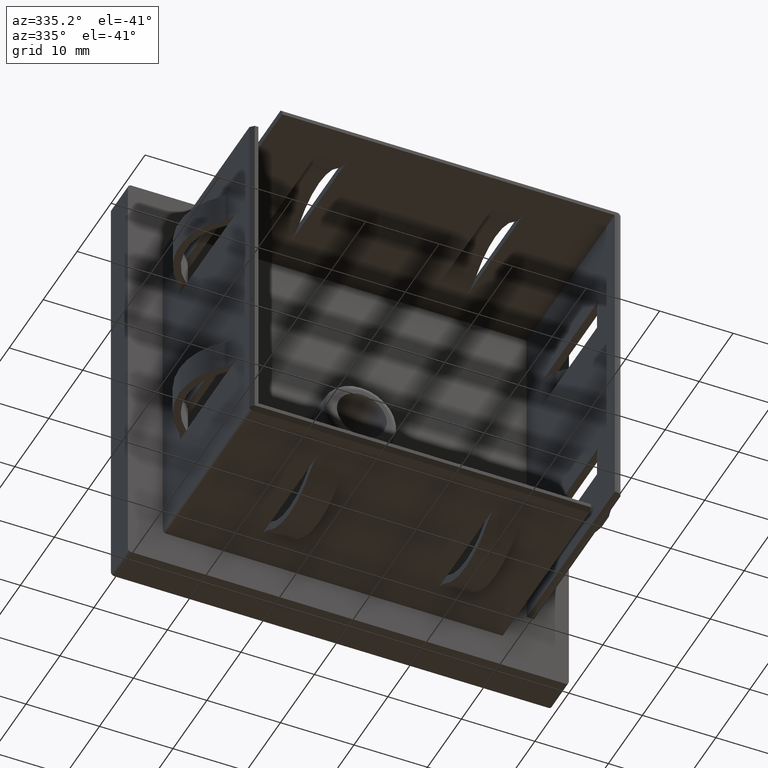
[diagram: clean part render]
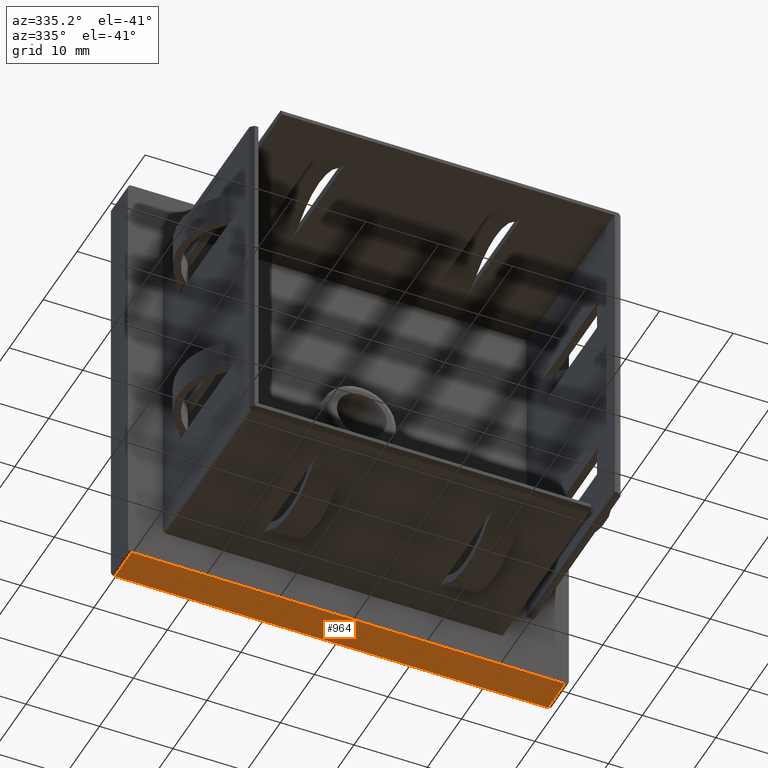
[diagram: same view with one face highlighted and labeled with its STEP entity id]
A machine part, auxiliary view. The second image highlights one B-rep face of the part: STEP entity #964.
In plain terms, the highlighted planar face has unit normal (0, 0, 1).
Its self-contained STEP definition (entity closure, byte-faithful):
#421 = LINE ( 'NONE', #3315, #12990 ) ;
#964 = ADVANCED_FACE ( 'NONE', ( #5050 ), #14375, .F. ) ;
#2780 = EDGE_CURVE ( 'NONE', #14487, #17881, #7658, .T. ) ;
#3139 = DIRECTION ( 'NONE',  ( 0.0000000000000000000, 0.0000000000000000000, 1.000000000000000000 ) ) ;
#3315 = CARTESIAN_POINT ( 'NONE',  ( 29.49999999999998900, 5.000000000000000000, -30.00000000000000400 ) ) ;
#4094 = EDGE_LOOP ( 'NONE', ( #8130, #10205, #17574, #13408 ) ) ;
#5050 = FACE_OUTER_BOUND ( 'NONE', #4094, .T. ) ;
#5849 = DIRECTION ( 'NONE',  ( 1.000000000000000000, 0.0000000000000000000, -0.0000000000000000000 ) ) ;
#7399 = VERTEX_POINT ( 'NONE', #13288 ) ;
#7427 = VERTEX_POINT ( 'NONE', #7497 ) ;
#7497 = CARTESIAN_POINT ( 'NONE',  ( -29.50000000000000700, 5.000000000000000000, -30.00000000000000400 ) ) ;
#7658 = LINE ( 'NONE', #14574, #8328 ) ;
#7967 = DIRECTION ( 'NONE',  ( -0.0000000000000000000, 1.000000000000000000, -0.0000000000000000000 ) ) ;
#8130 = ORIENTED_EDGE ( 'NONE', *, *, #12578, .F. ) ;
#8193 = AXIS2_PLACEMENT_3D ( 'NONE', #10220, #3139, #5849 ) ;
#8328 = VECTOR ( 'NONE', #10352, 1000.000000000000000 ) ;
#9381 = CARTESIAN_POINT ( 'NONE',  ( -29.50000000000000700, 5.000000000000000000, -30.00000000000000400 ) ) ;
#9508 = CARTESIAN_POINT ( 'NONE',  ( -29.50000000000000700, 0.0000000000000000000, -30.00000000000000400 ) ) ;
#9927 = VECTOR ( 'NONE', #11640, 1000.000000000000000 ) ;
#10205 = ORIENTED_EDGE ( 'NONE', *, *, #14522, .T. ) ;
#10220 = CARTESIAN_POINT ( 'NONE',  ( -30.00000000000001100, 5.000000000000000000, -30.00000000000000400 ) ) ;
#10226 = CARTESIAN_POINT ( 'NONE',  ( -30.00000000000001100, 5.000000000000000000, -30.00000000000000400 ) ) ;
#10352 = DIRECTION ( 'NONE',  ( -1.000000000000000000, -0.0000000000000000000, -0.0000000000000000000 ) ) ;
#11161 = LINE ( 'NONE', #9381, #17144 ) ;
#11640 = DIRECTION ( 'NONE',  ( -1.000000000000000000, -0.0000000000000000000, -0.0000000000000000000 ) ) ;
#12578 = EDGE_CURVE ( 'NONE', #7399, #7427, #17448, .T. ) ;
#12823 = CARTESIAN_POINT ( 'NONE',  ( 29.49999999999998900, 0.0000000000000000000, -30.00000000000000400 ) ) ;
#12990 = VECTOR ( 'NONE', #13443, 1000.000000000000000 ) ;
#13288 = CARTESIAN_POINT ( 'NONE',  ( 29.49999999999998900, 5.000000000000000000, -30.00000000000000400 ) ) ;
#13408 = ORIENTED_EDGE ( 'NONE', *, *, #17374, .T. ) ;
#13443 = DIRECTION ( 'NONE',  ( 0.0000000000000000000, -1.000000000000000000, 0.0000000000000000000 ) ) ;
#14375 = PLANE ( 'NONE',  #8193 ) ;
#14487 = VERTEX_POINT ( 'NONE', #12823 ) ;
#14522 = EDGE_CURVE ( 'NONE', #7399, #14487, #421, .T. ) ;
#14574 = CARTESIAN_POINT ( 'NONE',  ( -30.00000000000001100, 0.0000000000000000000, -30.00000000000000400 ) ) ;
#17144 = VECTOR ( 'NONE', #7967, 1000.000000000000000 ) ;
#17374 = EDGE_CURVE ( 'NONE', #17881, #7427, #11161, .T. ) ;
#17448 = LINE ( 'NONE', #10226, #9927 ) ;
#17574 = ORIENTED_EDGE ( 'NONE', *, *, #2780, .T. ) ;
#17881 = VERTEX_POINT ( 'NONE', #9508 ) ;